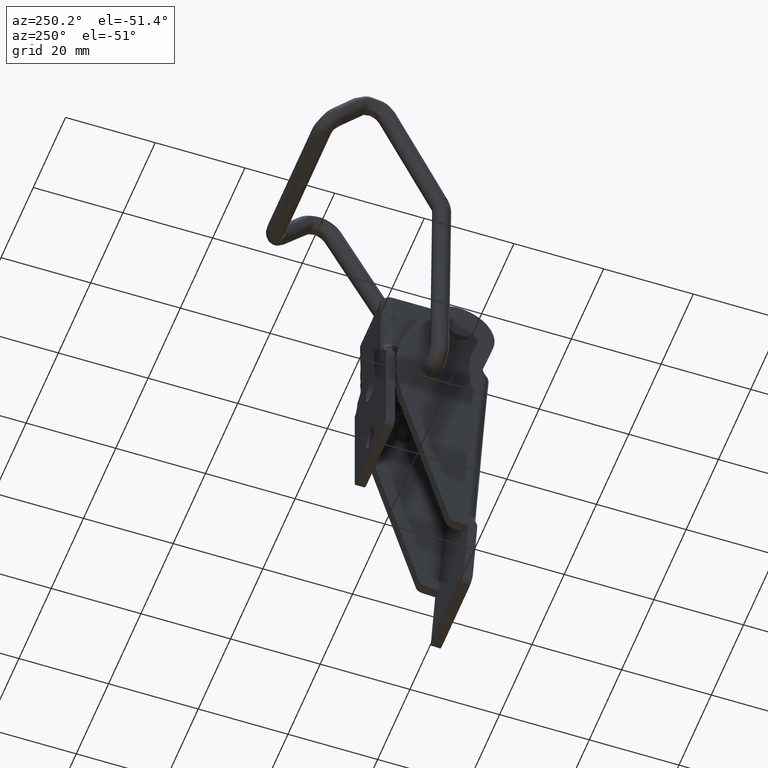
[diagram: clean part render]
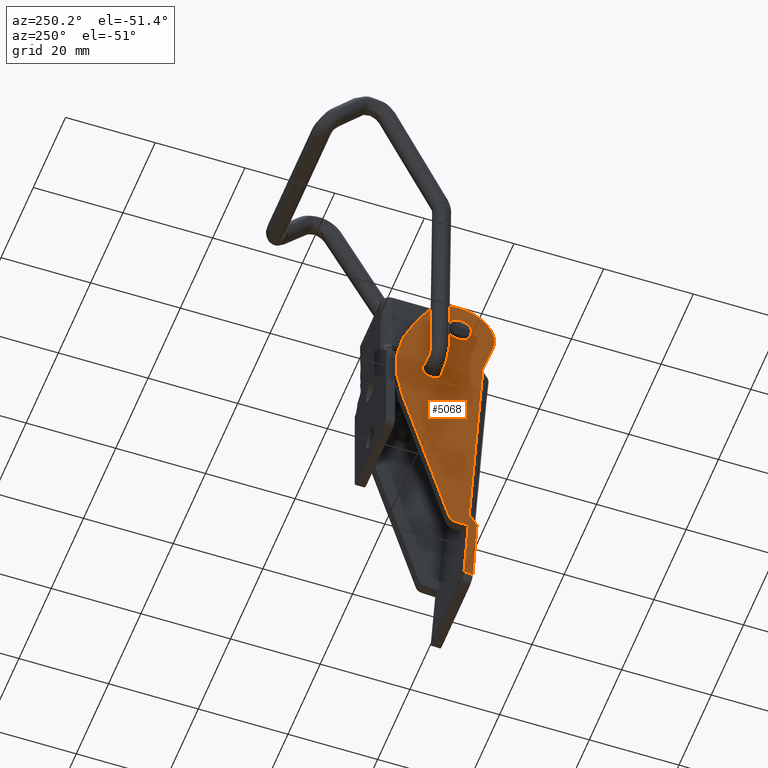
[diagram: same view with one face highlighted and labeled with its STEP entity id]
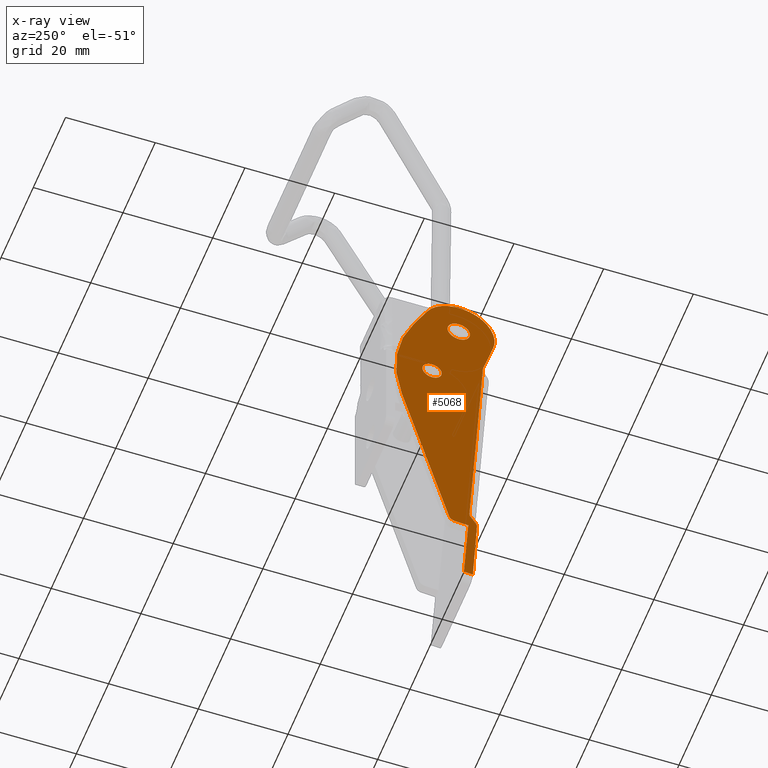
[diagram: x-ray of the same camera — body ghosted, the highlighted face saturated]
A machine part, auxiliary view. The second image highlights one B-rep face of the part: STEP entity #5068.
The next image is the same camera in x-ray: the body ghosted, the highlighted face saturated — about 0% of this face is hidden behind the body in this view.
In plain terms, the highlighted face is a freeform B-spline surface patch.
Its self-contained STEP definition (entity closure, byte-faithful):
#3785=CARTESIAN_POINT('',(-10.250000000000000,-1.791626966295493,1.743579554429903));
#3786=VERTEX_POINT('',#3785);
#3792=CARTESIAN_POINT('',(-10.250000000000000,0.0,2.500000000000000));
#3793=VERTEX_POINT('',#3792);
#3794=CARTESIAN_POINT('',(-10.250000000000000,0.0,2.500000000000000));
#3795=CARTESIAN_POINT('',(-10.249999999999989,-0.312152188766291,2.500291129147882));
#3796=CARTESIAN_POINT('',(-10.250000000000000,-0.977719104515432,2.373577497631020));
#3797=CARTESIAN_POINT('',(-10.250000000000011,-1.545236716570775,1.997481001284265));
#3798=CARTESIAN_POINT('',(-10.250000000000000,-1.791626966295493,1.743579554429903));
#3799=B_SPLINE_CURVE_WITH_KNOTS('',3,(#3794,#3795,#3796,#3797,#3798),.UNSPECIFIED.,.F.,.U.,(4,1,4),(0.000000068043183,0.936354741385426,1.997522735170768),.UNSPECIFIED.);
#3800=EDGE_CURVE('',#3793,#3786,#3799,.T.);
#3802=CARTESIAN_POINT('',(-10.250000000000000,2.499999999998729,0.000002521744511));
#3803=VERTEX_POINT('',#3802);
#3804=CARTESIAN_POINT('',(-10.250000000000000,2.499999999998729,0.000002521744511));
#3805=CARTESIAN_POINT('',(-10.250000000000011,2.500301079731660,0.327296153465015));
#3806=CARTESIAN_POINT('',(-10.250000000000011,2.389996733166236,0.879270830361406));
#3807=CARTESIAN_POINT('',(-10.250000000000000,2.005328925349767,1.539038374142352));
#3808=CARTESIAN_POINT('',(-10.250000000000020,1.539045833458789,2.005346148986441));
#3809=CARTESIAN_POINT('',(-10.249999999999970,0.879242729074128,2.389930443044953));
#3810=CARTESIAN_POINT('',(-10.250000000000030,0.327313389236235,2.500369944684451));
#3811=CARTESIAN_POINT('',(-10.250000000000000,0.0,2.500000000000000));
#3812=B_SPLINE_CURVE_WITH_KNOTS('',3,(#3804,#3805,#3806,#3807,#3808,#3809,#3810,#3811),.UNSPECIFIED.,.F.,.U.,(4,1,1,1,1,4),(0.000000261365670,0.981772181109400,1.656746540757695,2.270341664700088,2.945316018677027,3.927087939522544),.UNSPECIFIED.);
#3813=EDGE_CURVE('',#3803,#3793,#3812,.T.);
#3815=CARTESIAN_POINT('',(-10.250000000000000,0.0,-2.500000000000000));
#3816=VERTEX_POINT('',#3815);
#3817=CARTESIAN_POINT('',(-10.250000000000000,0.0,-2.500000000000000));
#3818=CARTESIAN_POINT('',(-10.249999999999989,0.286369482335083,-2.500189112013789));
#3819=CARTESIAN_POINT('',(-10.250000000000000,0.838462363091080,-2.404089720308980));
#3820=CARTESIAN_POINT('',(-10.250000000000041,1.546273686484834,-2.014619720947738));
#3821=CARTESIAN_POINT('',(-10.249999999999959,2.059436616166506,-1.475442713706041));
#3822=CARTESIAN_POINT('',(-10.250000000000050,2.411177499986457,-0.797581184262541));
#3823=CARTESIAN_POINT('',(-10.249999999999950,2.500188384670854,-0.286358559636928));
#3824=CARTESIAN_POINT('',(-10.250000000000000,2.499999999998729,0.000002521744511));
#3825=B_SPLINE_CURVE_WITH_KNOTS('',3,(#3817,#3818,#3819,#3820,#3821,#3822,#3823,#3824),.UNSPECIFIED.,.F.,.U.,(4,1,1,1,1,4),(0.000000257914397,0.859049662762262,1.656747734296482,2.393036430195572,3.068041376838867,3.927090782187269),.UNSPECIFIED.);
#3826=EDGE_CURVE('',#3816,#3803,#3825,.T.);
#3828=CARTESIAN_POINT('',(-10.250000000000000,-1.843193847007175,-1.688975897560358));
#3829=VERTEX_POINT('',#3828);
#3830=CARTESIAN_POINT('',(-10.250000000000000,-1.843193847007175,-1.688975897560358));
#3831=CARTESIAN_POINT('',(-10.250000000000000,-1.653706494600407,-1.896070450783116));
#3832=CARTESIAN_POINT('',(-10.250000000000011,-1.359635245730473,-2.124216847543707));
#3833=CARTESIAN_POINT('',(-10.249999999999989,-0.733848764890414,-2.419197879830707));
#3834=CARTESIAN_POINT('',(-10.250000000000000,-0.323915606136267,-2.500346731554767));
#3835=CARTESIAN_POINT('',(-10.250000000000000,0.0,-2.500000000000000));
#3836=B_SPLINE_CURVE_WITH_KNOTS('',3,(#3830,#3831,#3832,#3833,#3834,#3835),.UNSPECIFIED.,.F.,.U.,(4,1,1,4),(0.000000057082409,0.842024716882143,1.101077484418257,2.072636755642026),.UNSPECIFIED.);
#3837=EDGE_CURVE('',#3829,#3816,#3836,.T.);
#3918=CARTESIAN_POINT('',(-10.250000000000000,-2.499999999998728,-0.000002521744523));
#3919=VERTEX_POINT('',#3918);
#3920=CARTESIAN_POINT('',(-10.250000000000000,-2.499999999998728,-0.000002521744523));
#3921=CARTESIAN_POINT('',(-10.249999999999989,-2.500219458583783,-0.289790169087635));
#3922=CARTESIAN_POINT('',(-10.250000000000050,-2.391238938875624,-0.907747395264416));
#3923=CARTESIAN_POINT('',(-10.249999999999959,-2.065361366386141,-1.447079311720227));
#3924=CARTESIAN_POINT('',(-10.250000000000000,-1.843193847007175,-1.688975897560358));
#3925=B_SPLINE_CURVE_WITH_KNOTS('',3,(#3920,#3921,#3922,#3923,#3924),.UNSPECIFIED.,.F.,.U.,(4,1,4),(0.000000063440659,0.869292657277130,1.854451487560195),.UNSPECIFIED.);
#3926=EDGE_CURVE('',#3919,#3829,#3925,.T.);
#3928=CARTESIAN_POINT('',(-10.250000000000000,-1.791626966295493,1.743579554429903));
#3929=CARTESIAN_POINT('',(-10.249999999999989,-1.973948379620020,1.556393743420293));
#3930=CARTESIAN_POINT('',(-10.250000000000011,-2.243830517994937,1.174071303144655));
#3931=CARTESIAN_POINT('',(-10.249999999999980,-2.458383150283827,0.562762848584921));
#3932=CARTESIAN_POINT('',(-10.250000000000030,-2.500027576608830,0.180892093129433));
#3933=CARTESIAN_POINT('',(-10.250000000000000,-2.499999999998728,-0.000002521744523));
#3934=B_SPLINE_CURVE_WITH_KNOTS('',3,(#3928,#3929,#3930,#3931,#3932,#3933),.UNSPECIFIED.,.F.,.U.,(4,1,1,4),(0.000000057356546,0.783903634488206,1.386874229650501,1.929568740165849),.UNSPECIFIED.);
#3935=EDGE_CURVE('',#3786,#3919,#3934,.T.);
#3980=CARTESIAN_POINT('',(-10.250000000000000,4.415200945743753,-14.169521651038050));
#3981=VERTEX_POINT('',#3980);
#3987=CARTESIAN_POINT('',(-10.250000000000000,5.955999999999901,-13.519000000000000));
#3988=VERTEX_POINT('',#3987);
#3989=CARTESIAN_POINT('',(-10.250000000000000,5.955999999999901,-13.519000000000000));
#3990=CARTESIAN_POINT('',(-10.250000000000011,5.687548449889745,-13.518745570787040));
#3991=CARTESIAN_POINT('',(-10.250000000000000,5.115158045576160,-13.627736723252250));
#3992=CARTESIAN_POINT('',(-10.250000000000011,4.627087586243333,-13.951151010759411));
#3993=CARTESIAN_POINT('',(-10.250000000000000,4.415200945743753,-14.169521651038050));
#3994=B_SPLINE_CURVE_WITH_KNOTS('',3,(#3989,#3990,#3991,#3992,#3993),.UNSPECIFIED.,.F.,.U.,(4,1,4),(0.000000078896454,0.805271173507174,1.717869447431239),.UNSPECIFIED.);
#3995=EDGE_CURVE('',#3988,#3981,#3994,.T.);
#3997=CARTESIAN_POINT('',(-10.250000000000000,8.105999999998144,-15.668997249777551));
#3998=VERTEX_POINT('',#3997);
#3999=CARTESIAN_POINT('',(-10.250000000000000,8.105999999998144,-15.668997249777551));
#4000=CARTESIAN_POINT('',(-10.249999999999989,8.106228460174759,-15.405122541771590));
#4001=CARTESIAN_POINT('',(-10.250000000000011,8.020724412436085,-14.947940465151451));
#4002=CARTESIAN_POINT('',(-10.250000000000011,7.721090192396430,-14.403728921629410));
#4003=CARTESIAN_POINT('',(-10.249999999999980,7.299619467105716,-13.949752894362780));
#4004=CARTESIAN_POINT('',(-10.250000000000030,6.712340881892679,-13.607491991833010));
#4005=CARTESIAN_POINT('',(-10.249999999999959,6.202256413749867,-13.518866700277149));
#4006=CARTESIAN_POINT('',(-10.250000000000000,5.955999999999901,-13.519000000000000));
#4007=B_SPLINE_CURVE_WITH_KNOTS('',3,(#3999,#4000,#4001,#4002,#4003,#4004,#4005,#4006),.UNSPECIFIED.,.F.,.U.,(4,1,1,1,1,4),(0.000000266146866,0.791554358940697,1.372059675180828,1.846921352872221,2.638519440119242,3.377295300232661),.UNSPECIFIED.);
#4008=EDGE_CURVE('',#3998,#3988,#4007,.T.);
#4010=CARTESIAN_POINT('',(-10.250000000000000,5.955999999999901,-17.818999999999999));
#4011=VERTEX_POINT('',#4010);
#4012=CARTESIAN_POINT('',(-10.250000000000000,5.955999999999901,-17.818999999999999));
#4013=CARTESIAN_POINT('',(-10.250000000000000,6.184666856698723,-17.819084905134119));
#4014=CARTESIAN_POINT('',(-10.250000000000011,6.677142026241511,-17.739794779706742));
#4015=CARTESIAN_POINT('',(-10.249999999999940,7.335491460429256,-17.377634595665398));
#4016=CARTESIAN_POINT('',(-10.250000000000069,7.790063890276373,-16.850335132297779));
#4017=CARTESIAN_POINT('',(-10.249999999999950,8.048544741421724,-16.266996503716840));
#4018=CARTESIAN_POINT('',(-10.250000000000030,8.106079007676405,-15.880081334202430));
#4019=CARTESIAN_POINT('',(-10.250000000000000,8.105999999998144,-15.668997249777551));
#4020=B_SPLINE_CURVE_WITH_KNOTS('',3,(#4012,#4013,#4014,#4015,#4016,#4017,#4018,#4019),.UNSPECIFIED.,.F.,.U.,(4,1,1,1,1,4),(0.000000262382281,0.686004581119144,1.477582557652159,2.216330388154349,2.744057052423613,3.377298400451708),.UNSPECIFIED.);
#4021=EDGE_CURVE('',#4011,#3998,#4020,.T.);
#4023=CARTESIAN_POINT('',(-10.250000000000000,4.370853265867743,-17.121519458220149));
#4024=VERTEX_POINT('',#4023);
#4025=CARTESIAN_POINT('',(-10.250000000000000,4.370853265867743,-17.121519458220149));
#4026=CARTESIAN_POINT('',(-10.250000000000000,4.508775990783799,-17.272163692644099));
#4027=CARTESIAN_POINT('',(-10.250000000000000,4.784484545001320,-17.497921767905769));
#4028=CARTESIAN_POINT('',(-10.250000000000011,5.324818609016405,-17.752608615105771));
#4029=CARTESIAN_POINT('',(-10.249999999999989,5.714598480578863,-17.819168810637120));
#4030=CARTESIAN_POINT('',(-10.250000000000000,5.955999999999901,-17.818999999999999));
#4031=B_SPLINE_CURVE_WITH_KNOTS('',3,(#4025,#4026,#4027,#4028,#4029,#4030),.UNSPECIFIED.,.F.,.U.,(4,1,1,4),(0.000000070271986,0.612725760531994,1.058322744366302,1.782467549876907),.UNSPECIFIED.);
#4032=EDGE_CURVE('',#4024,#4011,#4031,.T.);
#4112=CARTESIAN_POINT('',(-10.250000000000000,3.806000000001660,-15.669002750222459));
#4113=VERTEX_POINT('',#4112);
#4114=CARTESIAN_POINT('',(-10.250000000000000,3.806000000001660,-15.669002750222459));
#4115=CARTESIAN_POINT('',(-10.250000000000000,3.805807843688562,-15.918221638472639));
#4116=CARTESIAN_POINT('',(-10.249999999999989,3.899536044820258,-16.449668756806659));
#4117=CARTESIAN_POINT('',(-10.250000000000011,4.179794366244821,-16.913484195371812));
#4118=CARTESIAN_POINT('',(-10.250000000000000,4.370853265867743,-17.121519458220149));
#4119=B_SPLINE_CURVE_WITH_KNOTS('',3,(#4114,#4115,#4116,#4117,#4118),.UNSPECIFIED.,.F.,.U.,(4,1,4),(0.000000071007557,0.747597243092033,1.594827871467165),.UNSPECIFIED.);
#4120=EDGE_CURVE('',#4113,#4024,#4119,.T.);
#4122=CARTESIAN_POINT('',(-10.250000000000000,4.415200945743753,-14.169521651038050));
#4123=CARTESIAN_POINT('',(-10.250000000000020,4.234209184186724,-14.355222629081130));
#4124=CARTESIAN_POINT('',(-10.249999999999980,3.921311456085649,-14.822298828554329));
#4125=CARTESIAN_POINT('',(-10.250000000000030,3.805634261004335,-15.375103831239150));
#4126=CARTESIAN_POINT('',(-10.250000000000000,3.806000000001660,-15.669002750222459));
#4127=B_SPLINE_CURVE_WITH_KNOTS('',3,(#4122,#4123,#4124,#4125,#4126),.UNSPECIFIED.,.F.,.U.,(4,1,4),(0.000000066481004,0.777875593541091,1.659429688785328),.UNSPECIFIED.);
#4128=EDGE_CURVE('',#3981,#4113,#4127,.T.);
#4486=CARTESIAN_POINT('',(-10.250000000000000,-3.158686477567875,-80.336644516899696));
#4487=VERTEX_POINT('',#4486);
#4501=CARTESIAN_POINT('',(-10.250000000000000,-5.383120112829660,-10.397073199195860));
#4502=VERTEX_POINT('',#4501);
#4550=CARTESIAN_POINT('',(-10.250000000000000,-3.158686477567875,-80.336644516899696));
#4551=CARTESIAN_POINT('',(-10.250000000000000,-3.460397142648600,-74.793451738671209));
#4552=CARTESIAN_POINT('',(-10.250000000000000,-3.762107807729320,-69.250258960442807));
#4553=CARTESIAN_POINT('',(-10.250000000000000,-4.063818472810045,-63.707066182214412));
#4554=CARTESIAN_POINT('',(-10.250000000000000,-4.124160605826191,-62.598427626568707));
#4555=CARTESIAN_POINT('',(-10.250000000000000,-2.301274170210435,-61.375941500023302));
#4556=CARTESIAN_POINT('',(-10.250000000000000,-2.368270821136940,-60.267705232614013));
#4557=CARTESIAN_POINT('',(-10.250000000000000,-3.373220585034513,-43.644161221474633));
#4558=CARTESIAN_POINT('',(-10.250000000000000,-4.378170348932086,-27.020617210335249));
#4559=CARTESIAN_POINT('',(-10.250000000000000,-5.383120112829658,-10.397073199195869));
#4560=B_SPLINE_CURVE_WITH_KNOTS('',3,(#4550,#4551,#4552,#4553,#4554,#4555,#4556,#4557,#4558,#4559),.UNSPECIFIED.,.F.,.U.,(4,3,3,4),(0.666666666666667,0.746031746031746,0.761904761904762,1.0),.UNSPECIFIED.);
#4561=EDGE_CURVE('',#4487,#4502,#4560,.T.);
#4582=CARTESIAN_POINT('',(-10.250000000000000,-1.162661380967210,-80.216643008086010));
#4583=VERTEX_POINT('',#4582);
#4613=CARTESIAN_POINT('',(-10.250000000000000,-1.162661380967210,-80.216643008086010));
#4614=CARTESIAN_POINT('',(-10.250000000000000,-3.158686477567875,-80.336644516899696));
#4615=QUASI_UNIFORM_CURVE('',1,(#4613,#4614),.UNSPECIFIED.,.F.,.U.);
#4616=EDGE_CURVE('',#4583,#4487,#4615,.T.);
#4952=CARTESIAN_POINT('',(-10.250000000000000,-9.098330272977243,12.412377525795661));
#4953=CARTESIAN_POINT('',(-10.250000000000000,15.098263318381401,12.412377525795661));
#4954=CARTESIAN_POINT('',(-10.250000000000000,-9.098330272977243,-84.749060315081380));
#4955=CARTESIAN_POINT('',(-10.250000000000000,15.098263318381401,-84.749060315081380));
#4956=B_SPLINE_SURFACE_WITH_KNOTS('',1,1,((#4952,#4954),(#4953,#4955)),.UNSPECIFIED.,.F.,.F.,.U.,(2,2),(2,2),(0.0,24.196593591358639),(0.0,97.161437840877042),.UNSPECIFIED.);
#4957=ORIENTED_EDGE('',*,*,#4616,.T.);
#4958=ORIENTED_EDGE('',*,*,#4561,.T.);
#4959=CARTESIAN_POINT('',(-10.250000000000000,-5.460837756484610,-9.908000329055062));
#4960=VERTEX_POINT('',#4959);
#4961=CARTESIAN_POINT('',(-10.250000000000000,-5.383120112829660,-10.397073199195860));
#4962=CARTESIAN_POINT('',(-10.250000000000011,-5.388623411026805,-10.231666361957110));
#4963=CARTESIAN_POINT('',(-10.249999999999989,-5.414813345369020,-10.066966180746221));
#4964=CARTESIAN_POINT('',(-10.250000000000000,-5.460837756484610,-9.908000329055062));
#4965=B_SPLINE_CURVE_WITH_KNOTS('',3,(#4961,#4962,#4963,#4964),.UNSPECIFIED.,.F.,.U.,(4,4),(7.192333E-009,0.496503082878707),.UNSPECIFIED.);
#4966=EDGE_CURVE('',#4502,#4960,#4965,.T.);
#4967=ORIENTED_EDGE('',*,*,#4966,.T.);
#4968=CARTESIAN_POINT('',(-10.250000000000000,-7.684649007201760,-2.223998569269550));
#4969=VERTEX_POINT('',#4968);
#4970=CARTESIAN_POINT('',(-10.250000000000000,-5.460837756484610,-9.908000329055062));
#4971=CARTESIAN_POINT('',(-10.250000000000000,-7.684649007201760,-2.223998569269550));
#4972=QUASI_UNIFORM_CURVE('',1,(#4970,#4971),.UNSPECIFIED.,.F.,.U.);
#4973=EDGE_CURVE('',#4960,#4969,#4972,.T.);
#4974=ORIENTED_EDGE('',*,*,#4973,.T.);
#4975=CARTESIAN_POINT('',(-10.250000000000000,7.022912066763629,3.831279956164240));
#4976=VERTEX_POINT('',#4975);
#4977=CARTESIAN_POINT('',(-10.250000000000000,7.022912066763629,3.831279956164240));
#4978=CARTESIAN_POINT('',(-10.250000000000020,6.702159193866827,4.419571689477105));
#4979=CARTESIAN_POINT('',(-10.250000000000000,6.091249125206159,5.265782052656396));
#4980=CARTESIAN_POINT('',(-10.250000000000000,4.886777319260129,6.391422970056410));
#4981=CARTESIAN_POINT('',(-10.250000000000121,3.492105166469601,7.283316066345732));
#4982=CARTESIAN_POINT('',(-10.249999999999840,1.894192245533210,7.828720101182698));
#4983=CARTESIAN_POINT('',(-10.250000000000290,0.228336373511560,8.044955951951978));
#4984=CARTESIAN_POINT('',(-10.249999999999860,-1.179360432166761,7.961357057087611));
#4985=CARTESIAN_POINT('',(-10.250000000000060,-2.748628626487702,7.564286133793121));
#4986=CARTESIAN_POINT('',(-10.249999999999989,-4.082255040852973,6.942561507179587));
#4987=CARTESIAN_POINT('',(-10.250000000000011,-5.410111207415184,5.961878141125358));
#4988=CARTESIAN_POINT('',(-10.249999999999989,-6.402235829828153,4.876418375607164));
#4989=CARTESIAN_POINT('',(-10.250000000000030,-7.219468638647700,3.549584522841359));
#4990=CARTESIAN_POINT('',(-10.249999999999970,-7.716833657393159,2.264644807295570));
#4991=CARTESIAN_POINT('',(-10.249999999999970,-8.008658256954883,0.765670621336852));
#4992=CARTESIAN_POINT('',(-10.250000000000250,-8.022686912875845,-0.704801001477341));
#4993=CARTESIAN_POINT('',(-10.249999999999410,-7.820147940605231,-1.755929329703925));
#4994=CARTESIAN_POINT('',(-10.250000000000000,-7.684649007201760,-2.223998569269550));
#4995=B_SPLINE_CURVE_WITH_KNOTS('',3,(#4977,#4978,#4979,#4980,#4981,#4982,#4983,#4984,#4985,#4986,#4987,#4988,#4989,#4990,#4991,#4992,#4993,#4994),.UNSPECIFIED.,.F.,.U.,(4,1,1,1,1,1,1,1,1,1,1,1,1,1,1,4),(0.000000399099008,2.010111977379477,3.106603234574962,4.934079480307975,6.944304489336513,8.132127881546802,9.959635121164761,11.147479853534939,12.974808094543709,14.345418660691820,16.081463399266010,17.360696706316229,19.005409416867611,20.193282496567662,21.929381235556580,23.391257050064262),.UNSPECIFIED.);
#4996=EDGE_CURVE('',#4976,#4969,#4995,.T.);
#4997=ORIENTED_EDGE('',*,*,#4996,.F.);
#4998=CARTESIAN_POINT('',(-10.250000000000000,9.973012821341200,-1.576390176152025));
#4999=VERTEX_POINT('',#4998);
#5000=CARTESIAN_POINT('',(-10.250000000000000,7.022912066763629,3.831279956164240));
#5001=CARTESIAN_POINT('',(-10.250000000000000,9.973012821341200,-1.576390176152025));
#5002=QUASI_UNIFORM_CURVE('',1,(#5000,#5001),.UNSPECIFIED.,.F.,.U.);
#5003=EDGE_CURVE('',#4976,#4999,#5002,.T.);
#5004=ORIENTED_EDGE('',*,*,#5003,.T.);
#5005=CARTESIAN_POINT('',(-10.250000000000000,12.716136963234201,-26.090234091220299));
#5006=VERTEX_POINT('',#5005);
#5007=CARTESIAN_POINT('',(-10.250000000000000,12.716136963234201,-26.090234091220299));
#5008=CARTESIAN_POINT('',(-10.250000000000011,13.123009184619979,-24.697695888002769));
#5009=CARTESIAN_POINT('',(-10.249999999999989,13.690119933140640,-22.115382413183159));
#5010=CARTESIAN_POINT('',(-10.250000000000011,14.062588623037380,-18.103832706152549));
#5011=CARTESIAN_POINT('',(-10.250000000000000,13.962749044065060,-14.536765780404471));
#5012=CARTESIAN_POINT('',(-10.250000000000000,13.431273760283760,-10.744975090408520));
#5013=CARTESIAN_POINT('',(-10.250000000000000,12.320158636810040,-6.458185485208010));
#5014=CARTESIAN_POINT('',(-10.250000000000041,10.933967413383380,-3.305649207481296));
#5015=CARTESIAN_POINT('',(-10.250000000000000,9.973012821341200,-1.576390176152025));
#5016=B_SPLINE_CURVE_WITH_KNOTS('',3,(#5007,#5008,#5009,#5010,#5011,#5012,#5013,#5014,#5015),.UNSPECIFIED.,.F.,.U.,(4,1,1,1,1,1,4),(0.000000020711205,4.352283310348266,7.913263000839372,12.067732911983990,15.035174692979700,19.387487221494901,25.322431551173359),.UNSPECIFIED.);
#5017=EDGE_CURVE('',#5006,#4999,#5016,.T.);
#5018=ORIENTED_EDGE('',*,*,#5017,.F.);
#5019=CARTESIAN_POINT('',(-10.250000000000000,2.154824201277075,-62.991602269865787));
#5020=VERTEX_POINT('',#5019);
#5021=CARTESIAN_POINT('',(-10.250000000000000,12.716136963234201,-26.090234091220299));
#5022=CARTESIAN_POINT('',(-10.250000000000000,2.154824201277075,-62.991602269865787));
#5023=QUASI_UNIFORM_CURVE('',1,(#5021,#5022),.UNSPECIFIED.,.F.,.U.);
#5024=EDGE_CURVE('',#5006,#5020,#5023,.T.);
#5025=ORIENTED_EDGE('',*,*,#5024,.T.);
#5026=CARTESIAN_POINT('',(-10.250000000000000,0.775830854068404,-64.069766028168900));
#5027=VERTEX_POINT('',#5026);
#5028=CARTESIAN_POINT('',(-10.250000000000000,0.775830854068404,-64.069766028168900));
#5029=CARTESIAN_POINT('',(-10.249999999999989,0.912003476404685,-64.064274994401458));
#5030=CARTESIAN_POINT('',(-10.250000000000020,1.202166049866493,-64.012384431853476));
#5031=CARTESIAN_POINT('',(-10.250000000000000,1.606529463579402,-63.807651565583420));
#5032=CARTESIAN_POINT('',(-10.250000000000000,1.956596345017071,-63.460952113831063));
#5033=CARTESIAN_POINT('',(-10.250000000000011,2.105805498647559,-63.159850828261384));
#5034=CARTESIAN_POINT('',(-10.250000000000000,2.154824201277075,-62.991602269865787));
#5035=B_SPLINE_CURVE_WITH_KNOTS('',3,(#5028,#5029,#5030,#5031,#5032,#5033,#5034),.UNSPECIFIED.,.F.,.U.,(4,1,1,1,4),(0.000000100162381,0.408875672330968,0.876164443538169,1.343448815619128,1.869146386738595),.UNSPECIFIED.);
#5036=EDGE_CURVE('',#5027,#5020,#5035,.T.);
#5037=ORIENTED_EDGE('',*,*,#5036,.F.);
#5038=CARTESIAN_POINT('',(-10.250000000000000,-2.127965271004145,-64.245574595395297));
#5039=VERTEX_POINT('',#5038);
#5040=CARTESIAN_POINT('',(-10.250000000000000,0.775830854068404,-64.069766028168900));
#5041=CARTESIAN_POINT('',(-10.250000000000000,-2.127965271004145,-64.245574595395297));
#5042=QUASI_UNIFORM_CURVE('',1,(#5040,#5041),.UNSPECIFIED.,.F.,.U.);
#5043=EDGE_CURVE('',#5027,#5039,#5042,.T.);
#5044=ORIENTED_EDGE('',*,*,#5043,.T.);
#5045=CARTESIAN_POINT('',(-10.250000000000000,-2.127965271004145,-64.245574595395297));
#5046=CARTESIAN_POINT('',(-10.250000000000000,-1.162661380967210,-80.216643008086010));
#5047=QUASI_UNIFORM_CURVE('',1,(#5045,#5046),.UNSPECIFIED.,.F.,.U.);
#5048=EDGE_CURVE('',#5039,#4583,#5047,.T.);
#5049=ORIENTED_EDGE('',*,*,#5048,.T.);
#5050=EDGE_LOOP('',(#4957,#4958,#4967,#4974,#4997,#5004,#5018,#5025,#5037,#5044,#5049));
#5051=FACE_OUTER_BOUND('',#5050,.T.);
#5052=ORIENTED_EDGE('',*,*,#4021,.T.);
#5053=ORIENTED_EDGE('',*,*,#4008,.T.);
#5054=ORIENTED_EDGE('',*,*,#3995,.T.);
#5055=ORIENTED_EDGE('',*,*,#4128,.T.);
#5056=ORIENTED_EDGE('',*,*,#4120,.T.);
#5057=ORIENTED_EDGE('',*,*,#4032,.T.);
#5058=EDGE_LOOP('',(#5052,#5053,#5054,#5055,#5056,#5057));
#5059=FACE_BOUND('',#5058,.T.);
#5060=ORIENTED_EDGE('',*,*,#3826,.T.);
#5061=ORIENTED_EDGE('',*,*,#3813,.T.);
#5062=ORIENTED_EDGE('',*,*,#3800,.T.);
#5063=ORIENTED_EDGE('',*,*,#3935,.T.);
#5064=ORIENTED_EDGE('',*,*,#3926,.T.);
#5065=ORIENTED_EDGE('',*,*,#3837,.T.);
#5066=EDGE_LOOP('',(#5060,#5061,#5062,#5063,#5064,#5065));
#5067=FACE_BOUND('',#5066,.T.);
#5068=ADVANCED_FACE('',(#5051,#5059,#5067),#4956,.T.);